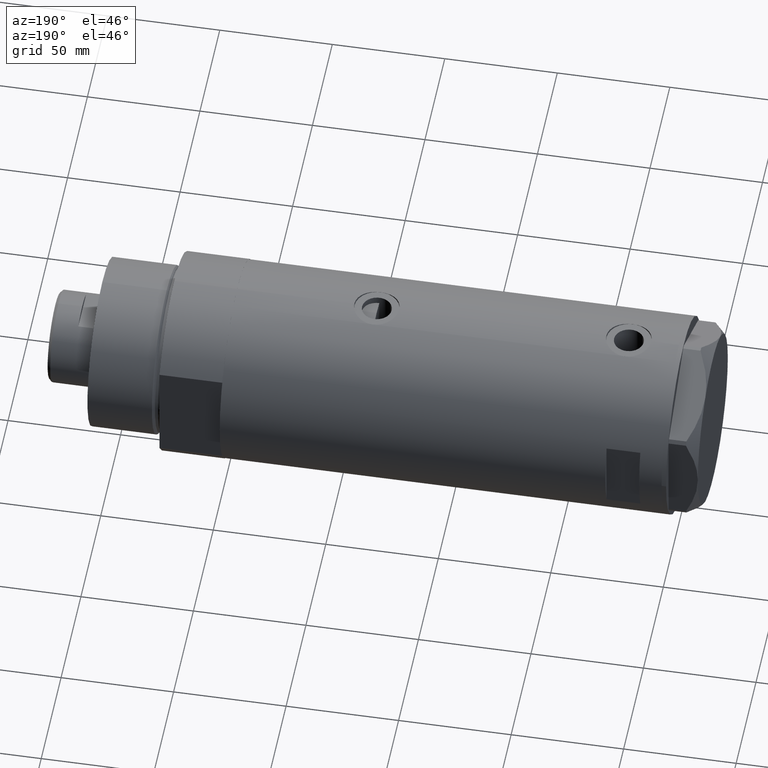
[diagram: clean part render]
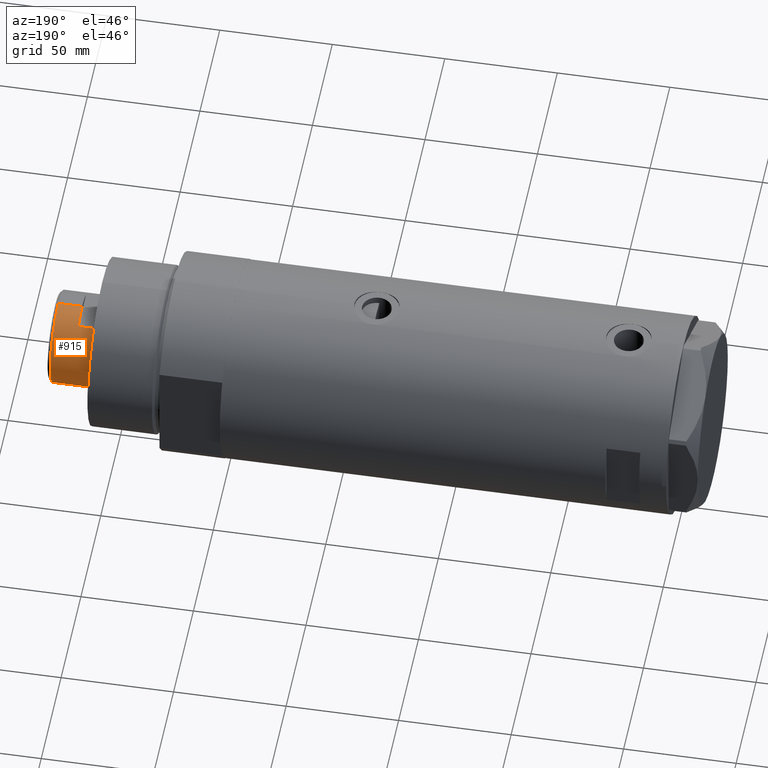
[diagram: same view with one face highlighted and labeled with its STEP entity id]
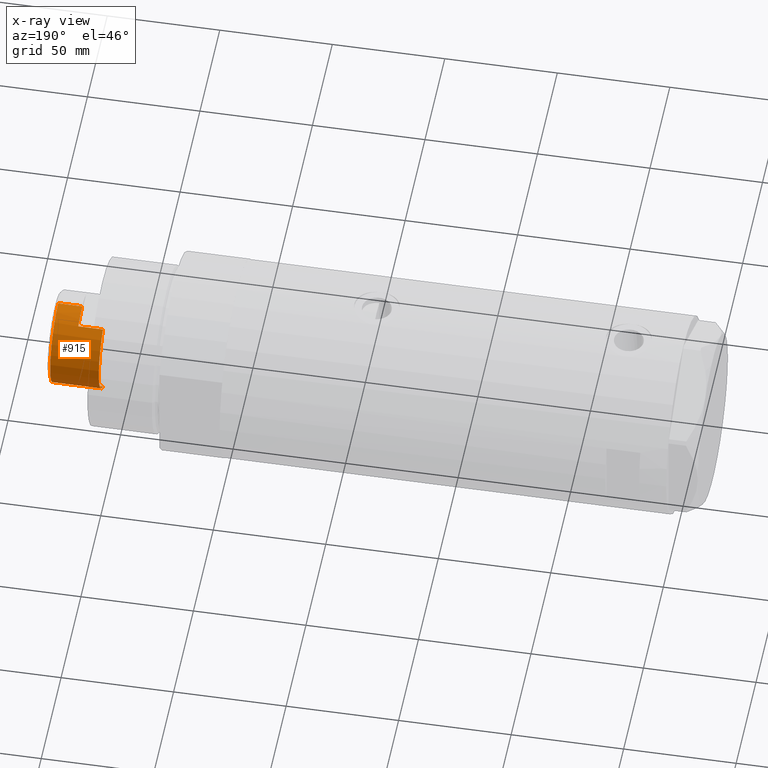
[diagram: x-ray of the same camera — body ghosted, the highlighted face saturated]
A machine part, auxiliary view. The second image highlights one B-rep face of the part: STEP entity #915.
The next image is the same camera in x-ray: the body ghosted, the highlighted face saturated — about 0% of this face is hidden behind the body in this view.
In plain terms, the highlighted cylindrical surface (partial cylindrical patch) has radius 20.5 mm, axis along (-1, -0, 0).
Its self-contained STEP definition (entity closure, byte-faithful):
#13 = EDGE_LOOP ( 'NONE', ( #1127, #1078, #4192, #2131, #211, #1441, #1115, #4055 ) ) ;
#163 = CYLINDRICAL_SURFACE ( 'NONE', #3141, 20.50000000000000355 ) ;
#185 = DIRECTION ( 'NONE',  ( 1.000000000000000000, 0.000000000000000000, 0.000000000000000000 ) ) ;
#211 = ORIENTED_EDGE ( 'NONE', *, *, #3971, .T. ) ;
#417 = AXIS2_PLACEMENT_3D ( 'NONE', #2896, #3993, #4730 ) ;
#689 = EDGE_CURVE ( 'NONE', #2964, #1053, #2422, .T. ) ;
#704 = DIRECTION ( 'NONE',  ( -1.000000000000000000, 0.000000000000000000, 0.000000000000000000 ) ) ;
#915 = ADVANCED_FACE ( 'NONE', ( #3879 ), #163, .T. ) ;
#923 = CARTESIAN_POINT ( 'NONE',  ( 0.000000000000000000, 0.000000000000000000, 249.8500000000000512 ) ) ;
#969 = AXIS2_PLACEMENT_3D ( 'NONE', #923, #1712, #185 ) ;
#1001 = CARTESIAN_POINT ( 'NONE',  ( -20.50000000000000000, 0.000000000000000000, 239.2500000000000284 ) ) ;
#1053 = VERTEX_POINT ( 'NONE', #3786 ) ;
#1078 = ORIENTED_EDGE ( 'NONE', *, *, #1343, .T. ) ;
#1113 = CIRCLE ( 'NONE', #3853, 20.50000000000000000 ) ;
#1115 = ORIENTED_EDGE ( 'NONE', *, *, #4033, .T. ) ;
#1127 = ORIENTED_EDGE ( 'NONE', *, *, #4383, .T. ) ;
#1296 = CARTESIAN_POINT ( 'NONE',  ( -20.50000000000000355, 0.000000000000000000, 239.2500000000000284 ) ) ;
#1343 = EDGE_CURVE ( 'NONE', #3315, #3813, #2211, .T. ) ;
#1438 = CARTESIAN_POINT ( 'NONE',  ( 20.50000000000000355, 2.510525938252074481E-15, 239.2500000000000284 ) ) ;
#1441 = ORIENTED_EDGE ( 'NONE', *, *, #2112, .F. ) ;
#1465 = DIRECTION ( 'NONE',  ( -0.000000000000000000, -0.000000000000000000, -1.000000000000000000 ) ) ;
#1563 = VERTEX_POINT ( 'NONE', #1001 ) ;
#1572 = CIRCLE ( 'NONE', #417, 20.50000000000007461 ) ;
#1705 = DIRECTION ( 'NONE',  ( 0.000000000000000000, 0.000000000000000000, 1.000000000000000000 ) ) ;
#1712 = DIRECTION ( 'NONE',  ( 0.000000000000000000, 0.000000000000000000, -1.000000000000000000 ) ) ;
#1793 = VECTOR ( 'NONE', #2811, 1000.000000000000000 ) ;
#1820 = CARTESIAN_POINT ( 'NONE',  ( -17.97852886083842705, 9.849999999999997868, 239.2500000000000284 ) ) ;
#2011 = EDGE_CURVE ( 'NONE', #4235, #1563, #3163, .T. ) ;
#2044 = CIRCLE ( 'NONE', #4258, 20.50000000000000000 ) ;
#2049 = EDGE_CURVE ( 'NONE', #3813, #2964, #1113, .T. ) ;
#2112 = EDGE_CURVE ( 'NONE', #3675, #2117, #4492, .T. ) ;
#2117 = VERTEX_POINT ( 'NONE', #4076 ) ;
#2131 = ORIENTED_EDGE ( 'NONE', *, *, #689, .T. ) ;
#2151 = CARTESIAN_POINT ( 'NONE',  ( 0.000000000000000000, 0.000000000000000000, 239.2500000000000284 ) ) ;
#2211 = LINE ( 'NONE', #1438, #4415 ) ;
#2345 = CARTESIAN_POINT ( 'NONE',  ( -20.50000000000000355, 0.000000000000000000, 249.8500000000000512 ) ) ;
#2422 = LINE ( 'NONE', #3483, #1793 ) ;
#2504 = DIRECTION ( 'NONE',  ( 1.000000000000000000, 0.000000000000000000, 0.000000000000000000 ) ) ;
#2776 = CARTESIAN_POINT ( 'NONE',  ( 20.50000000000000355, 2.510525938252074481E-15, 249.8500000000000512 ) ) ;
#2789 = DIRECTION ( 'NONE',  ( -0.000000000000000000, -0.000000000000000000, -1.000000000000000000 ) ) ;
#2811 = DIRECTION ( 'NONE',  ( -0.000000000000000000, -0.000000000000000000, -1.000000000000000000 ) ) ;
#2896 = CARTESIAN_POINT ( 'NONE',  ( 0.000000000000000000, 0.000000000000000000, 228.2500000000000000 ) ) ;
#2928 = DIRECTION ( 'NONE',  ( -0.000000000000000000, -0.000000000000000000, -1.000000000000000000 ) ) ;
#2964 = VERTEX_POINT ( 'NONE', #3335 ) ;
#3141 = AXIS2_PLACEMENT_3D ( 'NONE', #4706, #2928, #704 ) ;
#3157 = CIRCLE ( 'NONE', #969, 20.50000000000000355 ) ;
#3163 = LINE ( 'NONE', #1296, #4103 ) ;
#3177 = CARTESIAN_POINT ( 'NONE',  ( 0.000000000000000000, 0.000000000000000000, 239.2500000000000284 ) ) ;
#3315 = VERTEX_POINT ( 'NONE', #2776 ) ;
#3335 = CARTESIAN_POINT ( 'NONE',  ( 17.97852886083842705, 9.849999999999997868, 239.2500000000000284 ) ) ;
#3483 = CARTESIAN_POINT ( 'NONE',  ( 17.97852886083842705, 9.849999999999997868, 239.2500000000000284 ) ) ;
#3582 = DIRECTION ( 'NONE',  ( 1.000000000000000000, 0.000000000000000000, 0.000000000000000000 ) ) ;
#3675 = VERTEX_POINT ( 'NONE', #1820 ) ;
#3703 = VECTOR ( 'NONE', #1465, 1000.000000000000000 ) ;
#3716 = DIRECTION ( 'NONE',  ( -0.000000000000000000, -0.000000000000000000, -1.000000000000000000 ) ) ;
#3786 = CARTESIAN_POINT ( 'NONE',  ( 17.97852886083842705, 9.849999999999997868, 228.2500000000000000 ) ) ;
#3813 = VERTEX_POINT ( 'NONE', #4606 ) ;
#3853 = AXIS2_PLACEMENT_3D ( 'NONE', #2151, #1705, #3582 ) ;
#3879 = FACE_OUTER_BOUND ( 'NONE', #13, .T. ) ;
#3971 = EDGE_CURVE ( 'NONE', #1053, #2117, #1572, .T. ) ;
#3993 = DIRECTION ( 'NONE',  ( 0.000000000000000000, 0.000000000000000000, 1.000000000000000000 ) ) ;
#4033 = EDGE_CURVE ( 'NONE', #3675, #1563, #2044, .T. ) ;
#4055 = ORIENTED_EDGE ( 'NONE', *, *, #2011, .F. ) ;
#4076 = CARTESIAN_POINT ( 'NONE',  ( -17.97852886083843060, 9.850000000000139977, 228.2500000000000000 ) ) ;
#4103 = VECTOR ( 'NONE', #2789, 1000.000000000000000 ) ;
#4192 = ORIENTED_EDGE ( 'NONE', *, *, #2049, .T. ) ;
#4235 = VERTEX_POINT ( 'NONE', #2345 ) ;
#4258 = AXIS2_PLACEMENT_3D ( 'NONE', #3177, #4390, #2504 ) ;
#4383 = EDGE_CURVE ( 'NONE', #4235, #3315, #3157, .T. ) ;
#4390 = DIRECTION ( 'NONE',  ( 0.000000000000000000, 0.000000000000000000, 1.000000000000000000 ) ) ;
#4415 = VECTOR ( 'NONE', #3716, 1000.000000000000000 ) ;
#4470 = CARTESIAN_POINT ( 'NONE',  ( -17.97852886083842705, 9.849999999999997868, 239.2500000000000284 ) ) ;
#4492 = LINE ( 'NONE', #4470, #3703 ) ;
#4606 = CARTESIAN_POINT ( 'NONE',  ( 20.50000000000000000, 2.510525938252074481E-15, 239.2500000000000284 ) ) ;
#4706 = CARTESIAN_POINT ( 'NONE',  ( 0.000000000000000000, 0.000000000000000000, 239.2500000000000284 ) ) ;
#4730 = DIRECTION ( 'NONE',  ( 1.000000000000000000, 0.000000000000000000, 0.000000000000000000 ) ) ;